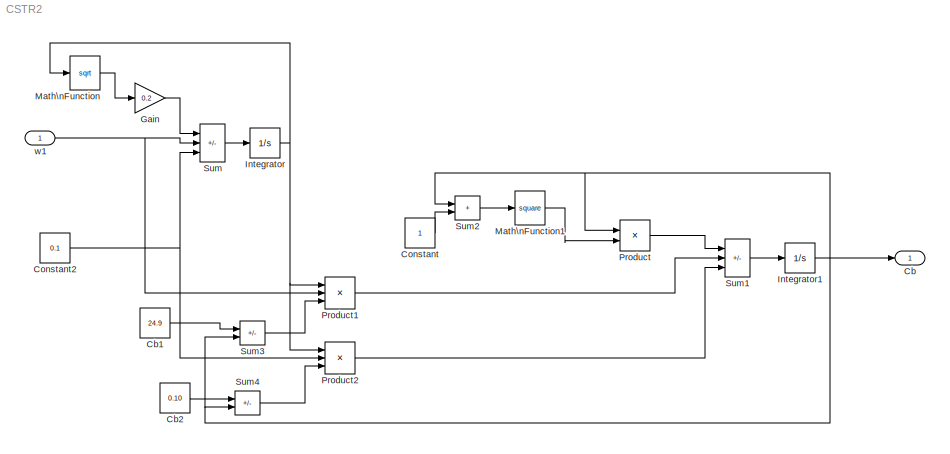
MODEL CSTR2
KIND model
CONFIG AbsTol = auto
CONFIG FixedStep = auto
CONFIG MaxStep = auto
CONFIG RelTol = 1e-3
CONFIG Solver = ode45
CONFIG SolverMode = Auto
CONFIG StartTime = 0.0
CONFIG StopTime = 1000.0
BLOCK [Outport] Cb
  InitialOutput = []
  OutputWhenDisabled = held
  Port = 1
BLOCK [Constant] Cb1
  Value = 24.9
BLOCK [Constant] Cb2
  Value = 0.10
BLOCK [Constant] Constant
  Value = 1
BLOCK [Constant] Constant2
  Value = 0.1
BLOCK [Gain] Gain
  Gain = 0.2
  SaturateOnIntegerOverflow = on
BLOCK [Integrator] Integrator
  AbsoluteTolerance = auto
  ExternalReset = none
  InitialCondition = 30
  InitialConditionSource = internal
  LimitOutput = on
  LowerSaturationLimit = 1
  Ports = [1, 1, 0, 0, 0]
  ShowSaturationPort = off
  ShowStatePort = off
  UpperSaturationLimit = inf
BLOCK [Integrator] Integrator1
  AbsoluteTolerance = auto
  ExternalReset = none
  InitialCondition = 22
  InitialConditionSource = internal
  LimitOutput = off
  LowerSaturationLimit = -inf
  Ports = [1, 1, 0, 0, 0]
  ShowSaturationPort = off
  ShowStatePort = off
  UpperSaturationLimit = inf
BLOCK [Math] Math\nFunction
  Operator = sqrt
  OutputSignalType = auto
  Ports = [1, 1, 0, 0, 0]
BLOCK [Math] Math\nFunction1
  Operator = square
  OutputSignalType = auto
  Ports = [1, 1, 0, 0, 0]
BLOCK [Product] Product
  Inputs = */
  Ports = [2, 1, 0, 0, 0]
  SaturateOnIntegerOverflow = on
BLOCK [Product] Product1
  Inputs = /**
  Ports = [3, 1, 0, 0, 0]
  SaturateOnIntegerOverflow = on
BLOCK [Product] Product2
  Inputs = /**
  Ports = [3, 1, 0, 0, 0]
  SaturateOnIntegerOverflow = on
BLOCK [Sum] Sum
  IconShape = rectangular
  Inputs = -++
  Ports = [3, 1, 0, 0, 0]
  SaturateOnIntegerOverflow = on
BLOCK [Sum] Sum1
  IconShape = rectangular
  Inputs = -++
  Ports = [3, 1, 0, 0, 0]
  SaturateOnIntegerOverflow = on
BLOCK [Sum] Sum2
  IconShape = rectangular
  Inputs = ++
  Ports = [2, 1, 0, 0, 0]
  SaturateOnIntegerOverflow = on
BLOCK [Sum] Sum3
  IconShape = rectangular
  Inputs = +-
  Ports = [2, 1, 0, 0, 0]
  SaturateOnIntegerOverflow = on
BLOCK [Sum] Sum4
  IconShape = rectangular
  Inputs = +-
  Ports = [2, 1, 0, 0, 0]
  SaturateOnIntegerOverflow = on
BLOCK [Inport] w1
  DataType = auto
  Interpolate = on
  Port = 1
  PortWidth = -1
  SampleTime = -1
  SignalType = auto
LINE Cb1:1 -> Sum3:1
LINE Cb2:1 -> Sum4:1
NET Constant2:1 -> Product2:2, Sum:3
LINE Constant:1 -> Sum2:2
LINE Gain:1 -> Sum:1
NET Integrator1:1 -> Cb:1, Product:1, Sum2:1, Sum3:2, Sum4:2
NET Integrator:1 -> Math\nFunction:1, Product1:1, Product2:1
LINE Math\nFunction1:1 -> Product:2
LINE Math\nFunction:1 -> Gain:1
LINE Product1:1 -> Sum1:2
LINE Product2:1 -> Sum1:3
LINE Product:1 -> Sum1:1
LINE Sum1:1 -> Integrator1:1
LINE Sum2:1 -> Math\nFunction1:1
LINE Sum3:1 -> Product1:3
LINE Sum4:1 -> Product2:3
LINE Sum:1 -> Integrator:1
NET w1:1 -> Product1:2, Sum:2
note: NET lines group one-source signal fan-out (src -> all destinations, sorted); 1:1 wires keep LINE
